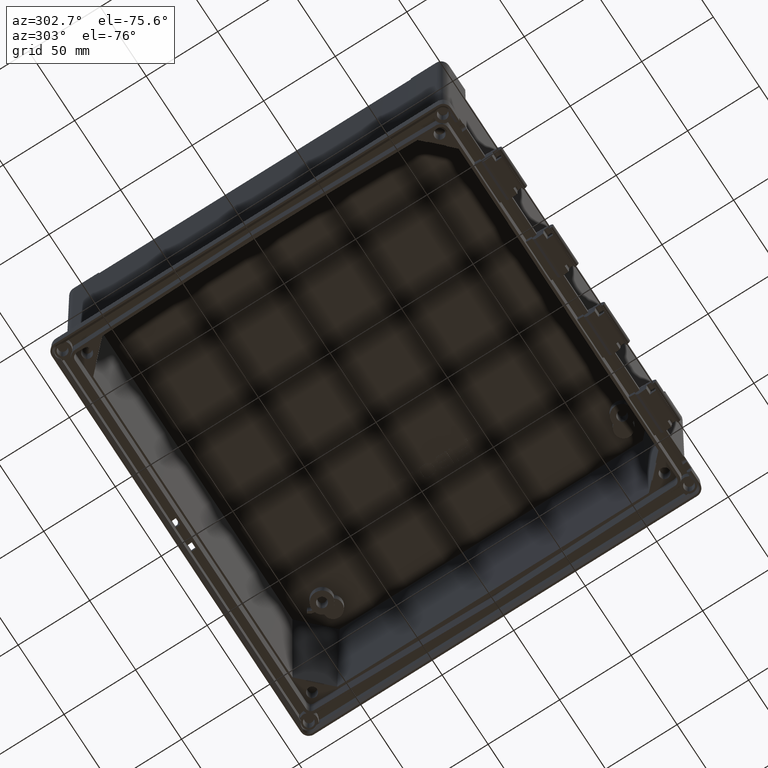
[diagram: clean part render]
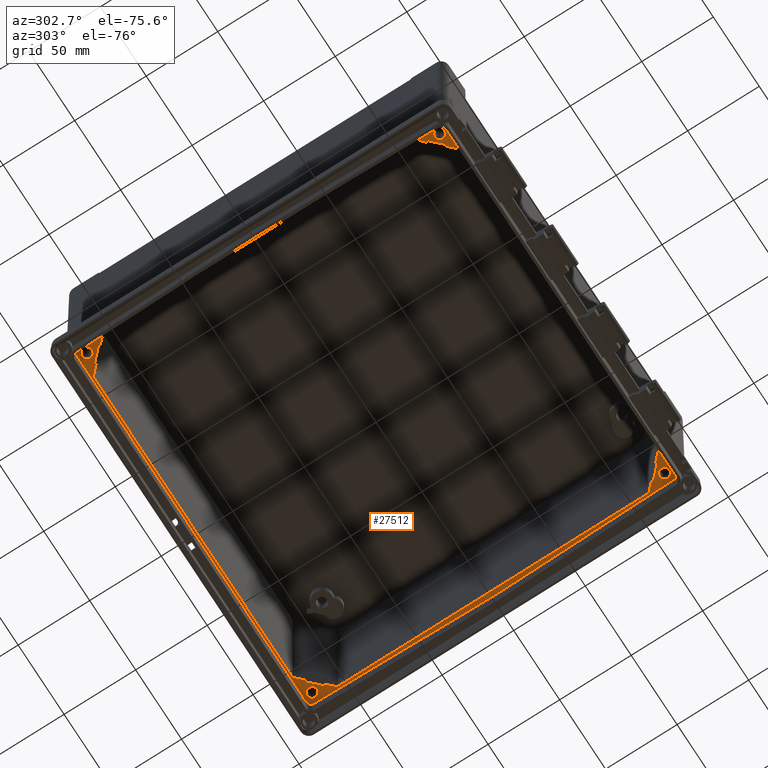
[diagram: same view with one face highlighted and labeled with its STEP entity id]
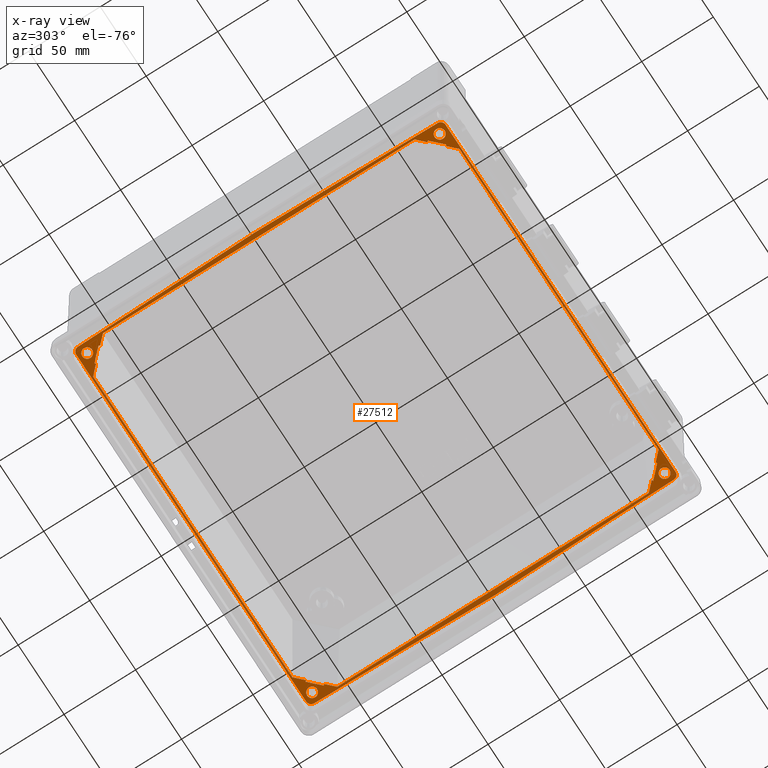
[diagram: x-ray of the same camera — body ghosted, the highlighted face saturated]
A machine part, auxiliary view. The second image highlights one B-rep face of the part: STEP entity #27512.
The next image is the same camera in x-ray: the body ghosted, the highlighted face saturated — about 0% of this face is hidden behind the body in this view.
In plain terms, the highlighted planar face has unit normal (-0, 0, -1).
Its self-contained STEP definition (entity closure, byte-faithful):
#4091 = CARTESIAN_POINT ( 'NONE',  ( 114.8737767247456500, 122.8827916777115900, 15.78999999999999900 ) ) ;
#4092 = DIRECTION ( 'NONE',  ( -0.7071067811865474600, 0.7071067811865474600, 0.0000000000000000000 ) ) ;
#4093 = VECTOR ( 'NONE', #4092, 1000.000000000000100 ) ;
#4094 = CARTESIAN_POINT ( 'NONE',  ( 122.6452168299228300, 115.1113515725344000, 15.78999999999999900 ) ) ;
#4095 = LINE ( 'NONE', #4094, #4093 ) ;
#4101 = DIRECTION ( 'NONE',  ( 0.0000000000000000000, 1.000000000000000000, -0.0000000000000000000 ) ) ;
#4102 = VECTOR ( 'NONE', #4101, 1000.000000000000000 ) ;
#4103 = CARTESIAN_POINT ( 'NONE',  ( 127.4981093756524500, 0.0000000000000000000, 15.78999999999999900 ) ) ;
#4104 = LINE ( 'NONE', #4103, #4102 ) ;
#4106 = CARTESIAN_POINT ( 'NONE',  ( 127.4981093756524500, 108.8807931680683800, 15.78999999999999900 ) ) ;
#4124 = CARTESIAN_POINT ( 'NONE',  ( 121.9566139398984500, 114.4222886038224200, 15.78999999999999900 ) ) ;
#4175 = CARTESIAN_POINT ( 'NONE',  ( 122.6452168299228300, 115.1113515725344000, 15.78999999999999900 ) ) ;
#4230 = CARTESIAN_POINT ( 'NONE',  ( 127.4981093756524500, -108.8807931680683800, 15.78999999999999600 ) ) ;
#4249 = DIRECTION ( 'NONE',  ( -0.7071067811865465700, 0.7071067811865483500, 0.0000000000000000000 ) ) ;
#4250 = VECTOR ( 'NONE', #4249, 1000.000000000000100 ) ;
#4251 = CARTESIAN_POINT ( 'NONE',  ( 127.4981093756524500, 108.8807931680683900, 15.78999999999999900 ) ) ;
#4254 = CARTESIAN_POINT ( 'NONE',  ( -114.8737767247456500, 122.8827916777115900, 15.78999999999999900 ) ) ;
#4256 = LINE ( 'NONE', #4251, #4250 ) ;
#4257 = CARTESIAN_POINT ( 'NONE',  ( -114.1851738347212500, 122.1937287089996000, 15.78999999999999900 ) ) ;
#4313 = DIRECTION ( 'NONE',  ( -0.7068705997775248700, -0.7073428837347289800, 0.0000000000000000000 ) ) ;
#4314 = VECTOR ( 'NONE', #4313, 1000.000000000000000 ) ;
#4315 = CARTESIAN_POINT ( 'NONE',  ( 114.8737767247456500, 122.8827916777115800, 15.78999999999999900 ) ) ;
#4316 = LINE ( 'NONE', #4315, #4314 ) ;
#4318 = CARTESIAN_POINT ( 'NONE',  ( 114.1851738347212500, 122.1937287089996000, 15.78999999999999900 ) ) ;
#4323 = DIRECTION ( 'NONE',  ( -1.000000000000000000, 0.0000000000000000000, 0.0000000000000000000 ) ) ;
#4324 = VECTOR ( 'NONE', #4323, 1000.000000000000000 ) ;
#4325 = CARTESIAN_POINT ( 'NONE',  ( 0.0000000000000000000, 127.9081093756524400, 15.78999999999999900 ) ) ;
#4326 = LINE ( 'NONE', #4325, #4324 ) ;
#4341 = DIRECTION ( 'NONE',  ( 0.7068705997775176500, 0.7073428837347361900, 0.0000000000000000000 ) ) ;
#4342 = VECTOR ( 'NONE', #4341, 1000.000000000000100 ) ;
#4343 = CARTESIAN_POINT ( 'NONE',  ( 121.9566139398984500, 114.4222886038224200, 15.78999999999999900 ) ) ;
#4344 = LINE ( 'NONE', #4343, #4342 ) ;
#4346 = CARTESIAN_POINT ( 'NONE',  ( 108.4707931680684100, 127.9081093756524400, 15.78999999999999600 ) ) ;
#4347 = DIRECTION ( 'NONE',  ( -0.7071067811865466800, 0.7071067811865483500, 0.0000000000000000000 ) ) ;
#4348 = VECTOR ( 'NONE', #4347, 1000.000000000000000 ) ;
#4349 = CARTESIAN_POINT ( 'NONE',  ( 114.1851738347212500, 122.1937287089996000, 15.78999999999999900 ) ) ;
#4354 = LINE ( 'NONE', #4349, #4348 ) ;
#4368 = DIRECTION ( 'NONE',  ( -0.7071067811865466800, -0.7071067811865483500, 0.0000000000000000000 ) ) ;
#4369 = VECTOR ( 'NONE', #4368, 1000.000000000000000 ) ;
#4370 = CARTESIAN_POINT ( 'NONE',  ( -108.4707931680684100, 127.9081093756524400, 15.78999999999999900 ) ) ;
#4371 = LINE ( 'NONE', #4370, #4369 ) ;
#4373 = DIRECTION ( 'NONE',  ( -0.7071067811865465700, -0.7071067811865483500, 0.0000000000000000000 ) ) ;
#4374 = VECTOR ( 'NONE', #4373, 1000.000000000000100 ) ;
#4375 = CARTESIAN_POINT ( 'NONE',  ( -121.9566139398984500, 114.4222886038224200, 15.78999999999999900 ) ) ;
#4376 = LINE ( 'NONE', #4375, #4374 ) ;
#4377 = CARTESIAN_POINT ( 'NONE',  ( -127.4981093756524500, 108.8807931680684200, 15.78999999999999600 ) ) ;
#4399 = DIRECTION ( 'NONE',  ( 0.7068705997775176500, -0.7073428837347361900, 0.0000000000000000000 ) ) ;
#4400 = VECTOR ( 'NONE', #4399, 1000.000000000000100 ) ;
#4401 = CARTESIAN_POINT ( 'NONE',  ( -122.6452168299228300, 115.1113515725344000, 15.78999999999999900 ) ) ;
#4402 = LINE ( 'NONE', #4401, #4400 ) ;
#4404 = CARTESIAN_POINT ( 'NONE',  ( -121.9566139398984500, 114.4222886038224200, 15.78999999999999900 ) ) ;
#4430 = DIRECTION ( 'NONE',  ( -0.7068705997775248700, 0.7073428837347289800, 0.0000000000000000000 ) ) ;
#4431 = VECTOR ( 'NONE', #4430, 1000.000000000000000 ) ;
#4432 = CARTESIAN_POINT ( 'NONE',  ( -114.1851738347212500, 122.1937287089996000, 15.78999999999999900 ) ) ;
#4438 = LINE ( 'NONE', #4432, #4431 ) ;
#4444 = CARTESIAN_POINT ( 'NONE',  ( -122.6452168299228300, 115.1113515725344000, 15.78999999999999900 ) ) ;
#4493 = DIRECTION ( 'NONE',  ( -0.7071067811865474600, -0.7071067811865474600, 0.0000000000000000000 ) ) ;
#4494 = VECTOR ( 'NONE', #4493, 1000.000000000000100 ) ;
#4495 = CARTESIAN_POINT ( 'NONE',  ( -114.8737767247456500, 122.8827916777115800, 15.78999999999999900 ) ) ;
#4496 = LINE ( 'NONE', #4495, #4494 ) ;
#4518 = CARTESIAN_POINT ( 'NONE',  ( -108.4707931680684000, 127.9081093756524400, 15.78999999999999900 ) ) ;
#4541 = DIRECTION ( 'NONE',  ( 0.7068705997775248700, 0.7073428837347289800, 0.0000000000000000000 ) ) ;
#4542 = VECTOR ( 'NONE', #4541, 1000.000000000000000 ) ;
#4543 = CARTESIAN_POINT ( 'NONE',  ( -114.8737767247456500, -122.8827916777115800, 15.78999999999999900 ) ) ;
#4544 = LINE ( 'NONE', #4543, #4542 ) ;
#4546 = CARTESIAN_POINT ( 'NONE',  ( -114.1851738347212500, -122.1937287089996000, 15.78999999999999900 ) ) ;
#4573 = DIRECTION ( 'NONE',  ( -0.7068705997775176500, -0.7073428837347361900, 0.0000000000000000000 ) ) ;
#4574 = VECTOR ( 'NONE', #4573, 1000.000000000000100 ) ;
#4575 = CARTESIAN_POINT ( 'NONE',  ( -121.9566139398984500, -114.4222886038224200, 15.78999999999999900 ) ) ;
#4578 = CARTESIAN_POINT ( 'NONE',  ( -122.6452168299228300, -115.1113515725344000, 15.78999999999999900 ) ) ;
#4580 = LINE ( 'NONE', #4575, #4574 ) ;
#4581 = CARTESIAN_POINT ( 'NONE',  ( -108.4707931680684100, -127.9081093756524400, 15.78999999999999600 ) ) ;
#4593 = CARTESIAN_POINT ( 'NONE',  ( -114.8737767247456500, -122.8827916777115900, 15.78999999999999900 ) ) ;
#4594 = DIRECTION ( 'NONE',  ( 0.7071067811865474600, -0.7071067811865474600, 0.0000000000000000000 ) ) ;
#4595 = VECTOR ( 'NONE', #4594, 1000.000000000000100 ) ;
#4596 = CARTESIAN_POINT ( 'NONE',  ( -122.6452168299228300, -115.1113515725344000, 15.78999999999999900 ) ) ;
#4597 = LINE ( 'NONE', #4596, #4595 ) ;
#4635 = CARTESIAN_POINT ( 'NONE',  ( -127.4981093756524500, -108.8807931680683800, 15.78999999999999900 ) ) ;
#4636 = DIRECTION ( 'NONE',  ( -0.0000000000000000000, -1.000000000000000000, 0.0000000000000000000 ) ) ;
#4637 = VECTOR ( 'NONE', #4636, 1000.000000000000000 ) ;
#4638 = CARTESIAN_POINT ( 'NONE',  ( -127.4981093756524500, 0.0000000000000000000, 15.78999999999999900 ) ) ;
#4639 = LINE ( 'NONE', #4638, #4637 ) ;
#4660 = CARTESIAN_POINT ( 'NONE',  ( -121.9566139398984500, -114.4222886038224200, 15.78999999999999900 ) ) ;
#4668 = CARTESIAN_POINT ( 'NONE',  ( 108.4707931680684000, -127.9081093756524400, 15.78999999999999900 ) ) ;
#4669 = DIRECTION ( 'NONE',  ( 1.000000000000000000, -0.0000000000000000000, -0.0000000000000000000 ) ) ;
#4670 = VECTOR ( 'NONE', #4669, 1000.000000000000000 ) ;
#4671 = CARTESIAN_POINT ( 'NONE',  ( 0.0000000000000000000, -127.9081093756524400, 15.78999999999999900 ) ) ;
#4672 = LINE ( 'NONE', #4671, #4670 ) ;
#4673 = DIRECTION ( 'NONE',  ( 0.7071067811865466800, 0.7071067811865483500, 0.0000000000000000000 ) ) ;
#4674 = VECTOR ( 'NONE', #4673, 1000.000000000000000 ) ;
#4675 = CARTESIAN_POINT ( 'NONE',  ( 108.4707931680684100, -127.9081093756524400, 15.78999999999999900 ) ) ;
#4676 = LINE ( 'NONE', #4675, #4674 ) ;
#4677 = CARTESIAN_POINT ( 'NONE',  ( 114.1851738347212500, -122.1937287089996300, 15.78999999999999900 ) ) ;
#4692 = CARTESIAN_POINT ( 'NONE',  ( 121.9566139398984500, -114.4222886038224200, 15.78999999999999900 ) ) ;
#4693 = DIRECTION ( 'NONE',  ( 0.7071067811865465700, 0.7071067811865483500, 0.0000000000000000000 ) ) ;
#4694 = VECTOR ( 'NONE', #4693, 1000.000000000000100 ) ;
#4695 = CARTESIAN_POINT ( 'NONE',  ( 121.9566139398984500, -114.4222886038224200, 15.78999999999999900 ) ) ;
#4696 = LINE ( 'NONE', #4695, #4694 ) ;
#4700 = DIRECTION ( 'NONE',  ( 0.7071067811865466800, -0.7071067811865483500, 0.0000000000000000000 ) ) ;
#4701 = VECTOR ( 'NONE', #4700, 1000.000000000000000 ) ;
#4702 = CARTESIAN_POINT ( 'NONE',  ( -114.1851738347212500, -122.1937287089996000, 15.78999999999999900 ) ) ;
#4707 = LINE ( 'NONE', #4702, #4701 ) ;
#4749 = DIRECTION ( 'NONE',  ( 0.7071067811865465700, -0.7071067811865483500, 0.0000000000000000000 ) ) ;
#4750 = VECTOR ( 'NONE', #4749, 1000.000000000000100 ) ;
#4751 = CARTESIAN_POINT ( 'NONE',  ( -127.4981093756524500, -108.8807931680683900, 15.78999999999999900 ) ) ;
#4753 = LINE ( 'NONE', #4751, #4750 ) ;
#4780 = B_SPLINE_CURVE_WITH_KNOTS ( 'NONE', 3,
 ( #4821, #4820, #4819, #4818, #4817, #4816, #4815, #4814, #4813, #4812, #4811, #4810, #4809, #4808, #4807, #4806, #4805, #4804, #4803, #4802, #4801, #4800, #4799, #4798, #4797, #4796, #4795, #4794, #4793, #4792, #4791 ),
 .UNSPECIFIED., .F., .F.,
 ( 4, 1, 2, 2, 2, 2, 2, 2, 2, 1, 2, 2, 2, 1, 2, 2, 4 ),
 ( 0.0000000000000000000, 0.06250000000000667500, 0.09375000000001002000, 0.1250000000000133500, 0.1875000000000136000, 0.2500000000000138800, 0.3750000000000063800, 0.4999999999999990000, 0.6249999999999915600, 0.6874999999999887900, 0.7187499999999890100, 0.7499999999999892300, 0.8124999999999924500, 0.8437499999999945600, 0.8593749999999947800, 0.8749999999999950000, 1.000000000000000000 ),
 .UNSPECIFIED. ) ;
#4791 = CARTESIAN_POINT ( 'NONE',  ( 118.8999999999980900, -123.1500000000000100, 15.78999999999948200 ) ) ;
#4792 = CARTESIAN_POINT ( 'NONE',  ( 118.9049070022350300, -122.6728031666890100, 15.78999999999999900 ) ) ;
#4793 = CARTESIAN_POINT ( 'NONE',  ( 118.9936068451573700, -122.2267801378566900, 15.78999999999999600 ) ) ;
#4794 = CARTESIAN_POINT ( 'NONE',  ( 119.1876611142182600, -121.7600747604589900, 15.78999999999999900 ) ) ;
#4795 = CARTESIAN_POINT ( 'NONE',  ( 119.2113684868923400, -121.7066633063313800, 15.78999999999999600 ) ) ;
#4796 = CARTESIAN_POINT ( 'NONE',  ( 119.2603452437933800, -121.6032944630323000, 15.79000000000000300 ) ) ;
#4797 = CARTESIAN_POINT ( 'NONE',  ( 119.3375181779204600, -121.4501399619564400, 15.78999999999999900 ) ) ;
#4798 = CARTESIAN_POINT ( 'NONE',  ( 119.4258145083743400, -121.3026817524987700, 15.78999999999999600 ) ) ;
#4799 = CARTESIAN_POINT ( 'NONE',  ( 119.6172383643847200, -121.0153603890743300, 15.78999999999999900 ) ) ;
#4800 = CARTESIAN_POINT ( 'NONE',  ( 119.7633988306755600, -120.8365413770855700, 15.78999999999999900 ) ) ;
#4801 = CARTESIAN_POINT ( 'NONE',  ( 120.0062729304511300, -120.5936849248901600, 15.78999999999999900 ) ) ;
#4802 = CARTESIAN_POINT ( 'NONE',  ( 120.0923594109237800, -120.5154654566899700, 15.79000000000000300 ) ) ;
#4803 = CARTESIAN_POINT ( 'NONE',  ( 120.2689056930024700, -120.3703750311386600, 15.78999999999999900 ) ) ;
#4804 = CARTESIAN_POINT ( 'NONE',  ( 120.5432268844681400, -120.1668205861924700, 15.79000000000000300 ) ) ;
#4805 = CARTESIAN_POINT ( 'NONE',  ( 120.8460533809765600, -120.0055097213884500, 15.78999999999999900 ) ) ;
#4806 = CARTESIAN_POINT ( 'NONE',  ( 121.4897134473836400, -119.7392127653034100, 15.78999999999999900 ) ) ;
#4807 = CARTESIAN_POINT ( 'NONE',  ( 121.9370324175983200, -119.6499517023017200, 15.78999999999999900 ) ) ;
#4808 = CARTESIAN_POINT ( 'NONE',  ( 122.8629675824016400, -119.6500913377981300, 15.78999999999999600 ) ) ;
#4809 = CARTESIAN_POINT ( 'NONE',  ( 123.3101344301842900, -119.7389989601642200, 15.78999999999999900 ) ) ;
#4810 = CARTESIAN_POINT ( 'NONE',  ( 124.1686520969246500, -120.0944891785560700, 15.79000000000000300 ) ) ;
#4811 = CARTESIAN_POINT ( 'NONE',  ( 124.5475287675117800, -120.3473048816521200, 15.78999999999999900 ) ) ;
#4812 = CARTESIAN_POINT ( 'NONE',  ( 125.0382632704552500, -120.8383031726069600, 15.78999999999999900 ) ) ;
#4813 = CARTESIAN_POINT ( 'NONE',  ( 125.1822785348703800, -121.0145106010379400, 15.78999999999999900 ) ) ;
#4814 = CARTESIAN_POINT ( 'NONE',  ( 125.4384765443739800, -121.3993053283432600, 15.78999999999999600 ) ) ;
#4815 = CARTESIAN_POINT ( 'NONE',  ( 125.5461710809059400, -121.6007596991179700, 15.78999999999999900 ) ) ;
#4816 = CARTESIAN_POINT ( 'NONE',  ( 125.6777651663965100, -121.9175165206958000, 15.79000000000000300 ) ) ;
#4817 = CARTESIAN_POINT ( 'NONE',  ( 125.7149113915831400, -122.0214625087661600, 15.78999999999999600 ) ) ;
#4818 = CARTESIAN_POINT ( 'NONE',  ( 125.7802104552667100, -122.2367712122376800, 15.78999999999999900 ) ) ;
#4819 = CARTESIAN_POINT ( 'NONE',  ( 125.8624471941251800, -122.5655113756534400, 15.78999999999999900 ) ) ;
#4820 = CARTESIAN_POINT ( 'NONE',  ( 125.8975483629834100, -122.9115828636946200, 15.78999999999999900 ) ) ;
#4821 = CARTESIAN_POINT ( 'NONE',  ( 125.9000000000021800, -123.1500000000000100, 15.78999999999948200 ) ) ;
#4850 = DIRECTION ( 'NONE',  ( 0.7071067811865474600, 0.7071067811865474600, 0.0000000000000000000 ) ) ;
#4851 = VECTOR ( 'NONE', #4850, 1000.000000000000100 ) ;
#4852 = CARTESIAN_POINT ( 'NONE',  ( 114.8737767247456500, -122.8827916777115800, 15.78999999999999900 ) ) ;
#4855 = CARTESIAN_POINT ( 'NONE',  ( 122.6452168299228300, -115.1113515725344000, 15.78999999999999900 ) ) ;
#4857 = LINE ( 'NONE', #4852, #4851 ) ;
#4871 = DIRECTION ( 'NONE',  ( -0.7068705997775176500, 0.7073428837347361900, 0.0000000000000000000 ) ) ;
#4872 = VECTOR ( 'NONE', #4871, 1000.000000000000100 ) ;
#4873 = CARTESIAN_POINT ( 'NONE',  ( 122.6452168299228300, -115.1113515725344000, 15.78999999999999900 ) ) ;
#4879 = LINE ( 'NONE', #4873, #4872 ) ;
#4925 = DIRECTION ( 'NONE',  ( 0.7068705997775248700, -0.7073428837347289800, 0.0000000000000000000 ) ) ;
#4926 = VECTOR ( 'NONE', #4925, 1000.000000000000000 ) ;
#4927 = CARTESIAN_POINT ( 'NONE',  ( 114.1851738347212500, -122.1937287089996000, 15.78999999999999900 ) ) ;
#4929 = CARTESIAN_POINT ( 'NONE',  ( 114.8737767247456500, -122.8827916777115900, 15.78999999999999900 ) ) ;
#4931 = LINE ( 'NONE', #4927, #4926 ) ;
#4997 = CARTESIAN_POINT ( 'NONE',  ( -119.2538289190717200, 124.6992403008408800, 15.79000000000000300 ) ) ;
#4998 = CARTESIAN_POINT ( 'NONE',  ( -119.1222348336147400, 124.3824834793248300, 15.78999999999999900 ) ) ;
#4999 = CARTESIAN_POINT ( 'NONE',  ( -119.0850886084167300, 124.2785374912225800, 15.79000000000000300 ) ) ;
#5000 = CARTESIAN_POINT ( 'NONE',  ( -119.0197895447331100, 124.0632287877446300, 15.78999999999999900 ) ) ;
#5001 = CARTESIAN_POINT ( 'NONE',  ( -118.9375528058745500, 123.7344886243240400, 15.78999999999999600 ) ) ;
#5002 = CARTESIAN_POINT ( 'NONE',  ( -118.9024516370163700, 123.3884171362925900, 15.78999999999999900 ) ) ;
#5003 = CARTESIAN_POINT ( 'NONE',  ( -118.8999999999980900, 123.1500000000000100, 15.78999999999948200 ) ) ;
#5015 = B_SPLINE_CURVE_WITH_KNOTS ( 'NONE', 3,
 ( #5003, #5002, #5001, #5000, #4999, #4998, #4997, #5064, #5063, #5062, #5061, #5060, #5059, #5058, #5057, #5056, #5055, #5054, #5053, #5052, #5051, #5050, #5049, #5048, #5047, #5046, #5045, #5044, #5043, #5042, #5041 ),
 .UNSPECIFIED., .F., .F.,
 ( 4, 1, 2, 2, 2, 2, 2, 2, 2, 1, 2, 2, 2, 1, 2, 2, 4 ),
 ( 0.0000000000000000000, 0.06250000000000019400, 0.09374999999999991700, 0.1249999999999996400, 0.1874999999999990800, 0.2499999999999953900, 0.3749999999999880700, 0.4999999999999806800, 0.6249999999999732400, 0.6874999999999726900, 0.7187499999999740200, 0.7499999999999753500, 0.8124999999999753500, 0.8437499999999732400, 0.8593749999999755800, 0.8749999999999779100, 1.000000000000000000 ),
 .UNSPECIFIED. ) ;
#5041 = CARTESIAN_POINT ( 'NONE',  ( -125.9000000000021800, 123.1500000000000100, 15.78999999999948200 ) ) ;
#5042 = CARTESIAN_POINT ( 'NONE',  ( -125.8950929977650500, 123.6271968333025200, 15.78999999999999600 ) ) ;
#5043 = CARTESIAN_POINT ( 'NONE',  ( -125.8063931548426800, 124.0732198621347900, 15.78999999999999900 ) ) ;
#5044 = CARTESIAN_POINT ( 'NONE',  ( -125.6123388857817100, 124.5399252395421300, 15.78999999999999900 ) ) ;
#5045 = CARTESIAN_POINT ( 'NONE',  ( -125.5886315131024000, 124.5933366936830900, 15.78999999999999900 ) ) ;
#5046 = CARTESIAN_POINT ( 'NONE',  ( -125.5396547561983900, 124.6967055369903600, 15.78999999999999200 ) ) ;
#5047 = CARTESIAN_POINT ( 'NONE',  ( -125.4624818220691500, 124.8498600380724100, 15.78999999999999900 ) ) ;
#5048 = CARTESIAN_POINT ( 'NONE',  ( -125.3741854916196300, 124.9973182475177500, 15.78999999999999600 ) ) ;
#5049 = CARTESIAN_POINT ( 'NONE',  ( -125.1827616356271900, 125.2846396108927300, 15.78999999999999900 ) ) ;
#5050 = CARTESIAN_POINT ( 'NONE',  ( -125.0366011693122300, 125.4634586229175900, 15.79000000000000300 ) ) ;
#5051 = CARTESIAN_POINT ( 'NONE',  ( -124.7937270695549500, 125.7063150751082900, 15.79000000000000300 ) ) ;
#5052 = CARTESIAN_POINT ( 'NONE',  ( -124.7076405890750800, 125.7845345433191700, 15.78999999999999600 ) ) ;
#5053 = CARTESIAN_POINT ( 'NONE',  ( -124.5310943069956700, 125.9296249688756600, 15.78999999999999600 ) ) ;
#5054 = CARTESIAN_POINT ( 'NONE',  ( -124.2567731155295300, 126.1331794138257300, 15.78999999999999600 ) ) ;
#5055 = CARTESIAN_POINT ( 'NONE',  ( -123.9539466190221600, 126.2944902786219400, 15.78999999999999900 ) ) ;
#5056 = CARTESIAN_POINT ( 'NONE',  ( -123.3102865526190200, 126.5607872346757900, 15.78999999999999900 ) ) ;
#5057 = CARTESIAN_POINT ( 'NONE',  ( -122.8629675823686100, 126.6500482976922500, 15.79000000000000300 ) ) ;
#5058 = CARTESIAN_POINT ( 'NONE',  ( -121.9370324176314000, 126.6499086622079100, 15.78999999999999600 ) ) ;
#5059 = CARTESIAN_POINT ( 'NONE',  ( -121.4898655698304100, 126.5610010398419100, 15.78999999999999900 ) ) ;
#5060 = CARTESIAN_POINT ( 'NONE',  ( -120.6313479030606900, 126.2055108214378500, 15.78999999999999900 ) ) ;
#5061 = CARTESIAN_POINT ( 'NONE',  ( -120.2524712324778600, 125.9526951183435800, 15.78999999999999900 ) ) ;
#5062 = CARTESIAN_POINT ( 'NONE',  ( -119.7617367295499500, 125.4616968273951900, 15.78999999999999600 ) ) ;
#5063 = CARTESIAN_POINT ( 'NONE',  ( -119.6177214651085300, 125.2854893989379400, 15.78999999999999600 ) ) ;
#5064 = CARTESIAN_POINT ( 'NONE',  ( -119.3615234556471200, 124.9006946716808800, 15.79000000000000300 ) ) ;
#5103 = CARTESIAN_POINT ( 'NONE',  ( -119.0197895447330600, -122.2367712122679100, 15.79000000000000300 ) ) ;
#5104 = CARTESIAN_POINT ( 'NONE',  ( -118.9375528058744600, -122.5655113756918300, 15.79000000000000300 ) ) ;
#5105 = CARTESIAN_POINT ( 'NONE',  ( -118.9024516370163100, -122.9115828637165000, 15.78999999999999600 ) ) ;
#5106 = CARTESIAN_POINT ( 'NONE',  ( -118.8999999999980900, -123.1500000000000200, 15.78999999999948200 ) ) ;
#5108 = B_SPLINE_CURVE_WITH_KNOTS ( 'NONE', 3,
 ( #5106, #5105, #5104, #5103, #5160, #5159, #5158, #5157, #5156, #5155, #5154, #5153, #5152, #5151, #5150, #5149, #5148, #5147, #5146, #5145, #5144, #5143, #5142, #5141, #5140, #5139, #5138, #5137, #5136, #5135, #5134 ),
 .UNSPECIFIED., .F., .F.,
 ( 4, 1, 2, 2, 2, 2, 2, 2, 2, 1, 2, 2, 2, 1, 2, 2, 4 ),
 ( 0.0000000000000000000, 0.06250000000000512100, 0.09375000000000542600, 0.1250000000000057500, 0.1875000000000063600, 0.2500000000000069900, 0.3750000000000082700, 0.5000000000000095500, 0.6250000000000107700, 0.6875000000000103300, 0.7187500000000095500, 0.7500000000000087700, 0.8125000000000074400, 0.8437500000000067700, 0.8593750000000062200, 0.8750000000000057700, 1.000000000000000000 ),
 .UNSPECIFIED. ) ;
#5134 = CARTESIAN_POINT ( 'NONE',  ( -125.9000000000021800, -123.1500000000000100, 15.78999999999948200 ) ) ;
#5135 = CARTESIAN_POINT ( 'NONE',  ( -125.8950929977651300, -122.6728031667036000, 15.78999999999999900 ) ) ;
#5136 = CARTESIAN_POINT ( 'NONE',  ( -125.8063931548428200, -122.2267801378713200, 15.78999999999999900 ) ) ;
#5137 = CARTESIAN_POINT ( 'NONE',  ( -125.6123388857817100, -121.7600747604571400, 15.78999999999999900 ) ) ;
#5138 = CARTESIAN_POINT ( 'NONE',  ( -125.5886315131111400, -121.7066633063366400, 15.78999999999999600 ) ) ;
#5139 = CARTESIAN_POINT ( 'NONE',  ( -125.5396547562121700, -121.6032944630406100, 15.79000000000000300 ) ) ;
#5140 = CARTESIAN_POINT ( 'NONE',  ( -125.4624818220865700, -121.4501399619669500, 15.78999999999999600 ) ) ;
#5141 = CARTESIAN_POINT ( 'NONE',  ( -125.3741854916296700, -121.3026817525048100, 15.78999999999999900 ) ) ;
#5142 = CARTESIAN_POINT ( 'NONE',  ( -125.1827616356072100, -121.0153603890622500, 15.78999999999999900 ) ) ;
#5143 = CARTESIAN_POINT ( 'NONE',  ( -125.0366011693424800, -120.8365413771126500, 15.79000000000000300 ) ) ;
#5144 = CARTESIAN_POINT ( 'NONE',  ( -124.7937270695399100, -120.5936849248767300, 15.79000000000000300 ) ) ;
#5145 = CARTESIAN_POINT ( 'NONE',  ( -124.7076405890898600, -120.5154654566955900, 15.78999999999999900 ) ) ;
#5146 = CARTESIAN_POINT ( 'NONE',  ( -124.5310943070189000, -120.3703750311475500, 15.79000000000000300 ) ) ;
#5147 = CARTESIAN_POINT ( 'NONE',  ( -124.2567731155590600, -120.1668205862037100, 15.78999999999999900 ) ) ;
#5148 = CARTESIAN_POINT ( 'NONE',  ( -123.9539466190389600, -120.0055097213949400, 15.78999999999999600 ) ) ;
#5149 = CARTESIAN_POINT ( 'NONE',  ( -123.3102865525853000, -119.7392127652905500, 15.78999999999999900 ) ) ;
#5150 = CARTESIAN_POINT ( 'NONE',  ( -122.8629675824016400, -119.6499517023017300, 15.79000000000000300 ) ) ;
#5151 = CARTESIAN_POINT ( 'NONE',  ( -121.9370324175983000, -119.6500913377981300, 15.78999999999999600 ) ) ;
#5152 = CARTESIAN_POINT ( 'NONE',  ( -121.4898655697898400, -119.7389989601642400, 15.78999999999999600 ) ) ;
#5153 = CARTESIAN_POINT ( 'NONE',  ( -120.6313479031013000, -120.0944891785560000, 15.78999999999999900 ) ) ;
#5154 = CARTESIAN_POINT ( 'NONE',  ( -120.2524712324699000, -120.3473048816704100, 15.78999999999999900 ) ) ;
#5155 = CARTESIAN_POINT ( 'NONE',  ( -119.7617367295539000, -120.8383031725977200, 15.78999999999999600 ) ) ;
#5156 = CARTESIAN_POINT ( 'NONE',  ( -119.6177214651417000, -121.0145106010257800, 15.78999999999999600 ) ) ;
#5157 = CARTESIAN_POINT ( 'NONE',  ( -119.3615234556139100, -121.3993053283554400, 15.79000000000000300 ) ) ;
#5158 = CARTESIAN_POINT ( 'NONE',  ( -119.2538289190766700, -121.6007596991381100, 15.78999999999999900 ) ) ;
#5159 = CARTESIAN_POINT ( 'NONE',  ( -119.1222348336122400, -121.9175165206857100, 15.78999999999999600 ) ) ;
#5160 = CARTESIAN_POINT ( 'NONE',  ( -119.0850886084166300, -122.0214625087854000, 15.78999999999999900 ) ) ;
#5164 = CARTESIAN_POINT ( 'NONE',  ( 124.1686520968804200, 126.2055108214379700, 15.78999999999999900 ) ) ;
#5165 = CARTESIAN_POINT ( 'NONE',  ( 124.5475287675429700, 125.9526951183106100, 15.79000000000000300 ) ) ;
#5166 = CARTESIAN_POINT ( 'NONE',  ( 125.0382632704396000, 125.4616968274117900, 15.79000000000000300 ) ) ;
#5167 = CARTESIAN_POINT ( 'NONE',  ( 125.1822785348402400, 125.2854893989953100, 15.79000000000000300 ) ) ;
#5168 = CARTESIAN_POINT ( 'NONE',  ( 125.4384765444041000, 124.9006946716236000, 15.78999999999999900 ) ) ;
#5169 = CARTESIAN_POINT ( 'NONE',  ( 125.5461710809280500, 124.6992403008608800, 15.78999999999999900 ) ) ;
#5170 = CARTESIAN_POINT ( 'NONE',  ( 125.6777651663853700, 124.3824834793148700, 15.78999999999999900 ) ) ;
#5171 = CARTESIAN_POINT ( 'NONE',  ( 125.7149113915834400, 124.2785374912056000, 15.78999999999999900 ) ) ;
#5172 = CARTESIAN_POINT ( 'NONE',  ( 125.7802104552671700, 124.0632287877179600, 15.79000000000000300 ) ) ;
#5173 = CARTESIAN_POINT ( 'NONE',  ( 125.8624471941257600, 123.7344886242900800, 15.79000000000000300 ) ) ;
#5174 = CARTESIAN_POINT ( 'NONE',  ( 125.8975483629837600, 123.3884171362731300, 15.78999999999999600 ) ) ;
#5175 = CARTESIAN_POINT ( 'NONE',  ( 125.9000000000021800, 123.1500000000000100, 15.78999999999948200 ) ) ;
#5187 = B_SPLINE_CURVE_WITH_KNOTS ( 'NONE', 3,
 ( #5175, #5174, #5173, #5172, #5171, #5170, #5169, #5168, #5167, #5166, #5165, #5164, #5227, #5226, #5225, #5224, #5223, #5222, #5221, #5220, #5219, #5218, #5217, #5216, #5215, #5214, #5213, #5212, #5211, #5210, #5209 ),
 .UNSPECIFIED., .F., .F.,
 ( 4, 1, 2, 2, 2, 2, 2, 2, 2, 1, 2, 2, 2, 1, 2, 2, 4 ),
 ( 0.0000000000000000000, 0.06249999999999783500, 0.09374999999999675300, 0.1249999999999956700, 0.1874999999999935100, 0.2499999999999944500, 0.3749999999999963400, 0.4999999999999982200, 0.6250000000000001100, 0.6875000000000042200, 0.7187500000000047700, 0.7500000000000052200, 0.8125000000000061100, 0.8437500000000087700, 0.8593750000000092100, 0.8750000000000096600, 1.000000000000000000 ),
 .UNSPECIFIED. ) ;
#5209 = CARTESIAN_POINT ( 'NONE',  ( 118.8999999999980900, 123.1500000000000200, 15.78999999999948200 ) ) ;
#5210 = CARTESIAN_POINT ( 'NONE',  ( 118.9049070022346500, 123.6271968332756800, 15.78999999999999900 ) ) ;
#5211 = CARTESIAN_POINT ( 'NONE',  ( 118.9936068451569800, 124.0732198621078900, 15.78999999999999600 ) ) ;
#5212 = CARTESIAN_POINT ( 'NONE',  ( 119.1876611142183400, 124.5399252395455000, 15.79000000000000300 ) ) ;
#5213 = CARTESIAN_POINT ( 'NONE',  ( 119.2113684868860700, 124.5933366936611400, 15.79000000000000300 ) ) ;
#5214 = CARTESIAN_POINT ( 'NONE',  ( 119.2603452437834600, 124.6967055369559200, 15.78999999999999900 ) ) ;
#5215 = CARTESIAN_POINT ( 'NONE',  ( 119.3375181779077800, 124.8498600380285900, 15.79000000000000300 ) ) ;
#5216 = CARTESIAN_POINT ( 'NONE',  ( 119.4258145083671400, 124.9973182474927000, 15.79000000000000300 ) ) ;
#5217 = CARTESIAN_POINT ( 'NONE',  ( 119.6172383643991700, 125.2846396109428300, 15.78999999999999900 ) ) ;
#5218 = CARTESIAN_POINT ( 'NONE',  ( 119.7633988306785400, 125.4634586229144200, 15.78999999999999900 ) ) ;
#5219 = CARTESIAN_POINT ( 'NONE',  ( 120.0062729304496000, 125.7063150751098100, 15.78999999999999900 ) ) ;
#5220 = CARTESIAN_POINT ( 'NONE',  ( 120.0923594109210900, 125.7845345433100700, 15.78999999999999600 ) ) ;
#5221 = CARTESIAN_POINT ( 'NONE',  ( 120.2689056929983300, 125.9296249688613800, 15.78999999999999900 ) ) ;
#5222 = CARTESIAN_POINT ( 'NONE',  ( 120.5432268844628700, 126.1331794138075500, 15.79000000000000300 ) ) ;
#5223 = CARTESIAN_POINT ( 'NONE',  ( 120.8460533809735700, 126.2944902786115600, 15.79000000000000300 ) ) ;
#5224 = CARTESIAN_POINT ( 'NONE',  ( 121.4897134473896900, 126.5607872346966000, 15.78999999999999900 ) ) ;
#5225 = CARTESIAN_POINT ( 'NONE',  ( 121.9370324175898300, 126.6500482976922800, 15.78999999999999900 ) ) ;
#5226 = CARTESIAN_POINT ( 'NONE',  ( 122.8629675824101600, 126.6499086622079300, 15.78999999999999900 ) ) ;
#5227 = CARTESIAN_POINT ( 'NONE',  ( 123.3101344302284600, 126.5610010398418600, 15.78999999999999900 ) ) ;
#5230 = VECTOR ( 'NONE', #5669, 1000.000000000000100 ) ;
#5231 = CARTESIAN_POINT ( 'NONE',  ( 128.5900492042191600, 125.7613499632062300, 15.79000000000000300 ) ) ;
#5232 = LINE ( 'NONE', #5231, #5230 ) ;
#5233 = VECTOR ( 'NONE', #5235, 1000.000000000000000 ) ;
#5235 = DIRECTION ( 'NONE',  ( -1.000000000000000000, 0.0000000000000000000, -0.0000000000000000000 ) ) ;
#5236 = CARTESIAN_POINT ( 'NONE',  ( -133.7072992288786700, 129.0952376915247200, 15.78999999999999600 ) ) ;
#5315 = CARTESIAN_POINT ( 'NONE',  ( 128.5900492042191300, -125.7613499632062300, 15.78999999999999900 ) ) ;
#5332 = CARTESIAN_POINT ( 'NONE',  ( 125.1974604045431900, -129.0952376915247400, 15.78999999999999900 ) ) ;
#5373 = CARTESIAN_POINT ( 'NONE',  ( 125.1974604045431900, -129.0952376915247400, 15.78999999999999900 ) ) ;
#5374 = CARTESIAN_POINT ( 'NONE',  ( 125.6446542181674200, -129.0943009434532800, 15.78999999999999900 ) ) ;
#5375 = CARTESIAN_POINT ( 'NONE',  ( 126.0729542624062300, -129.0101396456796900, 15.78999999999999600 ) ) ;
#5376 = CARTESIAN_POINT ( 'NONE',  ( 126.6870636746865400, -128.7590608744659400, 15.78999999999999900 ) ) ;
#5377 = CARTESIAN_POINT ( 'NONE',  ( 126.8824574397120700, -128.6564136132665800, 15.79000000000000300 ) ) ;
#5378 = CARTESIAN_POINT ( 'NONE',  ( 127.2469877765713700, -128.4163333972854300, 15.78999999999999900 ) ) ;
#5379 = CARTESIAN_POINT ( 'NONE',  ( 127.4173974231366800, -128.2783799456135200, 15.78999999999999900 ) ) ;
#5380 = CARTESIAN_POINT ( 'NONE',  ( 127.8930597972395900, -127.8107795595539200, 15.78999999999999600 ) ) ;
#5381 = CARTESIAN_POINT ( 'NONE',  ( 128.1400743685932500, -127.4499022394617900, 15.78999999999999600 ) ) ;
#5382 = CARTESIAN_POINT ( 'NONE',  ( 128.4902923933756800, -126.6334224832981500, 15.78999999999999900 ) ) ;
#5383 = CARTESIAN_POINT ( 'NONE',  ( 128.5812396834045000, -126.2082245296352600, 15.78999999999999600 ) ) ;
#5384 = CARTESIAN_POINT ( 'NONE',  ( 128.5900492042191300, -125.7613499632062300, 15.78999999999999900 ) ) ;
#5387 = B_SPLINE_CURVE_WITH_KNOTS ( 'NONE', 3,
 ( #5384, #5383, #5382, #5381, #5380, #5379, #5378, #5377, #5376, #5375, #5374, #5373 ),
 .UNSPECIFIED., .F., .F.,
 ( 4, 2, 2, 2, 2, 4 ),
 ( 0.0000000000000000000, 0.2499999999999995600, 0.4999999999999991100, 0.6250000000000044400, 0.7500000000000097700, 1.000000000000000000 ),
 .UNSPECIFIED. ) ;
#5393 = CARTESIAN_POINT ( 'NONE',  ( -126.0710282679371500, -129.0107722610311200, 15.78999999999999900 ) ) ;
#5394 = CARTESIAN_POINT ( 'NONE',  ( -125.6442750082951400, -129.0943017377937000, 15.79000000000000300 ) ) ;
#5395 = CARTESIAN_POINT ( 'NONE',  ( -125.1974604045432200, -129.0952376915247400, 15.78999999999999900 ) ) ;
#5426 = CARTESIAN_POINT ( 'NONE',  ( -125.1974604045432200, -129.0952376915247400, 15.78999999999999900 ) ) ;
#5427 = B_SPLINE_CURVE_WITH_KNOTS ( 'NONE', 3,
 ( #5395, #5394, #5393, #5447, #5446, #5445, #5444, #5443, #5442, #5441, #5440, #5439 ),
 .UNSPECIFIED., .F., .F.,
 ( 4, 2, 2, 2, 2, 4 ),
 ( 0.0000000000000000000, 0.2499999999999965600, 0.4999999999999931200, 0.6249999999999968900, 0.7500000000000007800, 1.000000000000000000 ),
 .UNSPECIFIED. ) ;
#5428 = CARTESIAN_POINT ( 'NONE',  ( -128.5900492042191300, -125.7613499632062300, 15.78999999999999900 ) ) ;
#5439 = CARTESIAN_POINT ( 'NONE',  ( -128.5900492042191300, -125.7613499632062300, 15.78999999999999900 ) ) ;
#5440 = CARTESIAN_POINT ( 'NONE',  ( -128.5812321968161000, -126.2086042967050500, 15.78999999999999600 ) ) ;
#5441 = CARTESIAN_POINT ( 'NONE',  ( -128.4896102557379400, -126.6353750960963000, 15.78999999999999900 ) ) ;
#5442 = CARTESIAN_POINT ( 'NONE',  ( -128.2279699436077500, -127.2448059940218300, 15.78999999999999900 ) ) ;
#5443 = CARTESIAN_POINT ( 'NONE',  ( -128.1219343545520000, -127.4383731931964800, 15.78999999999999900 ) ) ;
#5444 = CARTESIAN_POINT ( 'NONE',  ( -127.8755237435030000, -127.7986567894898700, 15.78999999999999600 ) ) ;
#5445 = CARTESIAN_POINT ( 'NONE',  ( -127.7345979097731300, -127.9666561757955800, 15.78999999999999600 ) ) ;
#5446 = CARTESIAN_POINT ( 'NONE',  ( -127.2586588239667000, -128.4342270991896800, 15.78999999999999600 ) ) ;
#5447 = CARTESIAN_POINT ( 'NONE',  ( -126.8936928065823900, -128.6747353353765100, 15.78999999999999600 ) ) ;
#5541 = CARTESIAN_POINT ( 'NONE',  ( -125.1974604045431900, 129.0952376915247400, 15.78999999999999900 ) ) ;
#5548 = CARTESIAN_POINT ( 'NONE',  ( -128.5900492042191300, 125.7613499632062300, 15.78999999999999900 ) ) ;
#5570 = CARTESIAN_POINT ( 'NONE',  ( -125.1974604045431900, 129.0952376915247400, 15.78999999999999900 ) ) ;
#5571 = CARTESIAN_POINT ( 'NONE',  ( -125.6446542181674200, 129.0943009434532800, 15.78999999999999900 ) ) ;
#5572 = CARTESIAN_POINT ( 'NONE',  ( -126.0729542624062300, 129.0101396456796900, 15.78999999999999600 ) ) ;
#5573 = CARTESIAN_POINT ( 'NONE',  ( -126.6870636746865400, 128.7590608744659400, 15.78999999999999900 ) ) ;
#5574 = CARTESIAN_POINT ( 'NONE',  ( -126.8824574397120700, 128.6564136132665800, 15.79000000000000300 ) ) ;
#5575 = CARTESIAN_POINT ( 'NONE',  ( -127.2469877765713700, 128.4163333972854300, 15.78999999999999900 ) ) ;
#5576 = CARTESIAN_POINT ( 'NONE',  ( -127.4173974231366800, 128.2783799456135200, 15.78999999999999900 ) ) ;
#5577 = CARTESIAN_POINT ( 'NONE',  ( -127.8930597972395900, 127.8107795595539200, 15.78999999999999600 ) ) ;
#5578 = CARTESIAN_POINT ( 'NONE',  ( -128.1400743685932500, 127.4499022394617900, 15.78999999999999600 ) ) ;
#5579 = CARTESIAN_POINT ( 'NONE',  ( -128.4902923933756800, 126.6334224832981500, 15.78999999999999900 ) ) ;
#5580 = CARTESIAN_POINT ( 'NONE',  ( -128.5812396834045000, 126.2082245296352600, 15.78999999999999600 ) ) ;
#5581 = CARTESIAN_POINT ( 'NONE',  ( -128.5900492042191300, 125.7613499632062300, 15.78999999999999900 ) ) ;
#5586 = FACE_OUTER_BOUND ( 'NONE', #27544, .T. ) ;
#5587 = FACE_BOUND ( 'NONE', #27497, .T. ) ;
#5588 = FACE_BOUND ( 'NONE', #27494, .T. ) ;
#5589 = FACE_BOUND ( 'NONE', #27513, .T. ) ;
#5590 = B_SPLINE_CURVE_WITH_KNOTS ( 'NONE', 3,
 ( #5581, #5580, #5579, #5578, #5577, #5576, #5575, #5574, #5573, #5572, #5571, #5570 ),
 .UNSPECIFIED., .F., .F.,
 ( 4, 2, 2, 2, 2, 4 ),
 ( 0.0000000000000000000, 0.2499999999999995600, 0.4999999999999991100, 0.6250000000000044400, 0.7500000000000097700, 1.000000000000000000 ),
 .UNSPECIFIED. ) ;
#5591 = FACE_BOUND ( 'NONE', #27491, .T. ) ;
#5592 = FACE_BOUND ( 'NONE', #27488, .T. ) ;
#5607 = DIRECTION ( 'NONE',  ( -1.000000000000000000, 0.0000000000000000000, 0.0000000000000000000 ) ) ;
#5608 = DIRECTION ( 'NONE',  ( -0.0000000000000000000, 0.0000000000000000000, -1.000000000000000000 ) ) ;
#5609 = CARTESIAN_POINT ( 'NONE',  ( 0.0000000000000000000, 0.0000000000000000000, 15.78999999999999900 ) ) ;
#5610 = AXIS2_PLACEMENT_3D ( 'NONE', #5609, #5608, #5607 ) ;
#5613 = PLANE ( 'NONE',  #5610 ) ;
#5622 = B_SPLINE_CURVE_WITH_KNOTS ( 'NONE', 3,
 ( #5627, #5626, #5625, #5641, #5640, #5639, #5638, #5637, #5636, #5635, #5634, #5633 ),
 .UNSPECIFIED., .F., .F.,
 ( 4, 2, 2, 2, 2, 4 ),
 ( 0.0000000000000000000, 0.2499999999999965600, 0.4999999999999931200, 0.6249999999999968900, 0.7500000000000007800, 1.000000000000000000 ),
 .UNSPECIFIED. ) ;
#5623 = CARTESIAN_POINT ( 'NONE',  ( 125.1974604045432200, 129.0952376915247400, 15.78999999999999900 ) ) ;
#5624 = CARTESIAN_POINT ( 'NONE',  ( 128.5900492042191300, 125.7613499632062300, 15.78999999999999900 ) ) ;
#5625 = CARTESIAN_POINT ( 'NONE',  ( 126.0710282679371500, 129.0107722610311200, 15.78999999999999900 ) ) ;
#5626 = CARTESIAN_POINT ( 'NONE',  ( 125.6442750082951400, 129.0943017377937000, 15.79000000000000300 ) ) ;
#5627 = CARTESIAN_POINT ( 'NONE',  ( 125.1974604045432200, 129.0952376915247400, 15.78999999999999900 ) ) ;
#5633 = CARTESIAN_POINT ( 'NONE',  ( 128.5900492042191300, 125.7613499632062300, 15.78999999999999900 ) ) ;
#5634 = CARTESIAN_POINT ( 'NONE',  ( 128.5812321968161000, 126.2086042967050500, 15.78999999999999600 ) ) ;
#5635 = CARTESIAN_POINT ( 'NONE',  ( 128.4896102557379400, 126.6353750960963000, 15.78999999999999900 ) ) ;
#5636 = CARTESIAN_POINT ( 'NONE',  ( 128.2279699436077500, 127.2448059940218300, 15.78999999999999900 ) ) ;
#5637 = CARTESIAN_POINT ( 'NONE',  ( 128.1219343545520000, 127.4383731931964800, 15.78999999999999900 ) ) ;
#5638 = CARTESIAN_POINT ( 'NONE',  ( 127.8755237435030000, 127.7986567894898700, 15.78999999999999600 ) ) ;
#5639 = CARTESIAN_POINT ( 'NONE',  ( 127.7345979097731300, 127.9666561757955800, 15.78999999999999600 ) ) ;
#5640 = CARTESIAN_POINT ( 'NONE',  ( 127.2586588239667000, 128.4342270991896800, 15.78999999999999600 ) ) ;
#5641 = CARTESIAN_POINT ( 'NONE',  ( 126.8936928065823900, 128.6747353353765100, 15.78999999999999600 ) ) ;
#5668 = LINE ( 'NONE', #5236, #5233 ) ;
#5669 = DIRECTION ( 'NONE',  ( 0.01745240643728331700, -0.9998476951563911600, -2.758334368542547200E-017 ) ) ;
#5670 = DIRECTION ( 'NONE',  ( -0.01745240643728331700, -0.9998476951563911600, -2.758334368542547200E-017 ) ) ;
#5671 = VECTOR ( 'NONE', #5670, 1000.000000000000100 ) ;
#5672 = CARTESIAN_POINT ( 'NONE',  ( -128.5900492042191600, 125.7613499632062300, 15.79000000000000300 ) ) ;
#5673 = LINE ( 'NONE', #5672, #5671 ) ;
#5697 = LINE ( 'NONE', #5749, #5748 ) ;
#5718 = DIRECTION ( 'NONE',  ( 0.01745240643728331700, 0.9998476951563911600, -2.758334368542547200E-017 ) ) ;
#5719 = VECTOR ( 'NONE', #5718, 1000.000000000000100 ) ;
#5720 = CARTESIAN_POINT ( 'NONE',  ( 128.5900492042191600, -125.7613499632062300, 15.79000000000000300 ) ) ;
#5721 = LINE ( 'NONE', #5720, #5719 ) ;
#5723 = CARTESIAN_POINT ( 'NONE',  ( 130.7852217332871900, -1.236668102991278500E-016, 15.78999999999999900 ) ) ;
#5742 = CARTESIAN_POINT ( 'NONE',  ( -130.7852217332872200, 1.611056665677679200E-015, 15.78999999999999900 ) ) ;
#5743 = DIRECTION ( 'NONE',  ( -0.01745240643728331700, 0.9998476951563911600, -2.758334368542547200E-017 ) ) ;
#5744 = VECTOR ( 'NONE', #5743, 1000.000000000000100 ) ;
#5745 = CARTESIAN_POINT ( 'NONE',  ( -128.5900492042191600, -125.7613499632062300, 15.79000000000000300 ) ) ;
#5746 = LINE ( 'NONE', #5745, #5744 ) ;
#5747 = DIRECTION ( 'NONE',  ( 1.000000000000000000, -0.0000000000000000000, 0.0000000000000000000 ) ) ;
#5748 = VECTOR ( 'NONE', #5747, 1000.000000000000000 ) ;
#5749 = CARTESIAN_POINT ( 'NONE',  ( 133.7072992288786700, -129.0952376915247200, 15.78999999999999900 ) ) ;
#21445 = CARTESIAN_POINT ( 'NONE',  ( 122.8629675823686100, -126.6500482976922500, 15.79000000000000300 ) ) ;
#21446 = CARTESIAN_POINT ( 'NONE',  ( 121.9370324176314000, -126.6499086622079100, 15.78999999999999600 ) ) ;
#21447 = CARTESIAN_POINT ( 'NONE',  ( 121.4898655698304100, -126.5610010398419100, 15.78999999999999900 ) ) ;
#21448 = CARTESIAN_POINT ( 'NONE',  ( 120.6313479030606900, -126.2055108214378500, 15.78999999999999900 ) ) ;
#21449 = CARTESIAN_POINT ( 'NONE',  ( 120.2524712324778600, -125.9526951183435800, 15.78999999999999900 ) ) ;
#21450 = CARTESIAN_POINT ( 'NONE',  ( 119.7617367295499500, -125.4616968273951900, 15.78999999999999600 ) ) ;
#21451 = CARTESIAN_POINT ( 'NONE',  ( 119.6177214651085300, -125.2854893989379400, 15.78999999999999600 ) ) ;
#21452 = CARTESIAN_POINT ( 'NONE',  ( 119.3615234556471200, -124.9006946716808800, 15.79000000000000300 ) ) ;
#21453 = CARTESIAN_POINT ( 'NONE',  ( 119.2538289190717200, -124.6992403008408800, 15.79000000000000300 ) ) ;
#21454 = CARTESIAN_POINT ( 'NONE',  ( 119.1222348336147400, -124.3824834793248300, 15.78999999999999900 ) ) ;
#21455 = CARTESIAN_POINT ( 'NONE',  ( 119.0850886084167300, -124.2785374912225800, 15.79000000000000300 ) ) ;
#21456 = CARTESIAN_POINT ( 'NONE',  ( 119.0197895447331100, -124.0632287877446300, 15.78999999999999900 ) ) ;
#21457 = CARTESIAN_POINT ( 'NONE',  ( 118.9375528058745500, -123.7344886243240400, 15.78999999999999600 ) ) ;
#21458 = CARTESIAN_POINT ( 'NONE',  ( 118.9024516370163700, -123.3884171362925900, 15.78999999999999900 ) ) ;
#21459 = CARTESIAN_POINT ( 'NONE',  ( 118.8999999999980900, -123.1500000000000100, 15.78999999999948200 ) ) ;
#21479 = B_SPLINE_CURVE_WITH_KNOTS ( 'NONE', 3,
 ( #21459, #21458, #21457, #21456, #21455, #21454, #21453, #21452, #21451, #21450, #21449, #21448, #21447, #21446, #21445, #21512, #21511, #21510, #21509, #21508, #21507, #21506, #21505, #21504, #21503, #21502, #21501, #21500, #21499, #21498, #21497 ),
 .UNSPECIFIED., .F., .F.,
 ( 4, 1, 2, 2, 2, 2, 2, 2, 2, 1, 2, 2, 2, 1, 2, 2, 4 ),
 ( 0.0000000000000000000, 0.06250000000000019400, 0.09374999999999991700, 0.1249999999999996400, 0.1874999999999990800, 0.2499999999999953900, 0.3749999999999880700, 0.4999999999999806800, 0.6249999999999732400, 0.6874999999999726900, 0.7187499999999740200, 0.7499999999999753500, 0.8124999999999753500, 0.8437499999999732400, 0.8593749999999755800, 0.8749999999999779100, 1.000000000000000000 ),
 .UNSPECIFIED. ) ;
#21497 = CARTESIAN_POINT ( 'NONE',  ( 125.9000000000021800, -123.1500000000000100, 15.78999999999948200 ) ) ;
#21498 = CARTESIAN_POINT ( 'NONE',  ( 125.8950929977650500, -123.6271968333025200, 15.78999999999999600 ) ) ;
#21499 = CARTESIAN_POINT ( 'NONE',  ( 125.8063931548426800, -124.0732198621347900, 15.78999999999999900 ) ) ;
#21500 = CARTESIAN_POINT ( 'NONE',  ( 125.6123388857817100, -124.5399252395421300, 15.78999999999999900 ) ) ;
#21501 = CARTESIAN_POINT ( 'NONE',  ( 125.5886315131024000, -124.5933366936830900, 15.78999999999999900 ) ) ;
#21502 = CARTESIAN_POINT ( 'NONE',  ( 125.5396547561983900, -124.6967055369903600, 15.78999999999999200 ) ) ;
#21503 = CARTESIAN_POINT ( 'NONE',  ( 125.4624818220691500, -124.8498600380724100, 15.78999999999999900 ) ) ;
#21504 = CARTESIAN_POINT ( 'NONE',  ( 125.3741854916196300, -124.9973182475177500, 15.78999999999999600 ) ) ;
#21505 = CARTESIAN_POINT ( 'NONE',  ( 125.1827616356271900, -125.2846396108927300, 15.78999999999999900 ) ) ;
#21506 = CARTESIAN_POINT ( 'NONE',  ( 125.0366011693122300, -125.4634586229175900, 15.79000000000000300 ) ) ;
#21507 = CARTESIAN_POINT ( 'NONE',  ( 124.7937270695549500, -125.7063150751082900, 15.79000000000000300 ) ) ;
#21508 = CARTESIAN_POINT ( 'NONE',  ( 124.7076405890750800, -125.7845345433191700, 15.78999999999999600 ) ) ;
#21509 = CARTESIAN_POINT ( 'NONE',  ( 124.5310943069956700, -125.9296249688756600, 15.78999999999999600 ) ) ;
#21510 = CARTESIAN_POINT ( 'NONE',  ( 124.2567731155295300, -126.1331794138257300, 15.78999999999999600 ) ) ;
#21511 = CARTESIAN_POINT ( 'NONE',  ( 123.9539466190221600, -126.2944902786219400, 15.78999999999999900 ) ) ;
#21512 = CARTESIAN_POINT ( 'NONE',  ( 123.3102865526190200, -126.5607872346757900, 15.78999999999999900 ) ) ;
#21649 = CARTESIAN_POINT ( 'NONE',  ( 125.9000000000021800, -123.1500000000000100, 15.78999999999948200 ) ) ;
#21666 = CARTESIAN_POINT ( 'NONE',  ( 118.8999999999980900, -123.1500000000000100, 15.78999999999948200 ) ) ;
#21972 = CARTESIAN_POINT ( 'NONE',  ( -125.9000000000021800, -123.1500000000000100, 15.78999999999948200 ) ) ;
#22262 = B_SPLINE_CURVE_WITH_KNOTS ( 'NONE', 3,
 ( #22577, #22576, #22575, #22574, #22573, #22572, #22571, #22570, #22569, #22568, #22567, #22566, #22565, #22564, #22563, #22562, #22561, #22560, #22559, #22558, #22557, #22556, #22555, #22554, #22553, #22552, #22551, #22550, #22549, #22548, #22547 ),
 .UNSPECIFIED., .F., .F.,
 ( 4, 1, 2, 2, 2, 2, 2, 2, 2, 1, 2, 2, 2, 1, 2, 2, 4 ),
 ( 0.0000000000000000000, 0.06250000000000667500, 0.09375000000001002000, 0.1250000000000133500, 0.1875000000000136000, 0.2500000000000138800, 0.3750000000000063800, 0.4999999999999990000, 0.6249999999999915600, 0.6874999999999887900, 0.7187499999999890100, 0.7499999999999892300, 0.8124999999999924500, 0.8437499999999945600, 0.8593749999999947800, 0.8749999999999950000, 1.000000000000000000 ),
 .UNSPECIFIED. ) ;
#22476 = CARTESIAN_POINT ( 'NONE',  ( -124.5475287675429700, -125.9526951183106100, 15.79000000000000300 ) ) ;
#22477 = CARTESIAN_POINT ( 'NONE',  ( -125.0382632704396000, -125.4616968274117900, 15.79000000000000300 ) ) ;
#22478 = CARTESIAN_POINT ( 'NONE',  ( -125.1822785348402400, -125.2854893989953100, 15.79000000000000300 ) ) ;
#22479 = CARTESIAN_POINT ( 'NONE',  ( -125.4384765444041000, -124.9006946716236000, 15.78999999999999900 ) ) ;
#22480 = CARTESIAN_POINT ( 'NONE',  ( -125.5461710809280500, -124.6992403008608800, 15.78999999999999900 ) ) ;
#22481 = CARTESIAN_POINT ( 'NONE',  ( -125.6777651663853700, -124.3824834793148700, 15.78999999999999900 ) ) ;
#22482 = CARTESIAN_POINT ( 'NONE',  ( -125.7149113915834400, -124.2785374912056000, 15.78999999999999900 ) ) ;
#22483 = CARTESIAN_POINT ( 'NONE',  ( -125.7802104552671700, -124.0632287877179600, 15.79000000000000300 ) ) ;
#22484 = CARTESIAN_POINT ( 'NONE',  ( -125.8624471941257600, -123.7344886242900800, 15.79000000000000300 ) ) ;
#22485 = CARTESIAN_POINT ( 'NONE',  ( -125.8975483629837600, -123.3884171362731300, 15.78999999999999600 ) ) ;
#22486 = CARTESIAN_POINT ( 'NONE',  ( -125.9000000000021800, -123.1500000000000100, 15.78999999999948200 ) ) ;
#22502 = B_SPLINE_CURVE_WITH_KNOTS ( 'NONE', 3,
 ( #22486, #22485, #22484, #22483, #22482, #22481, #22480, #22479, #22478, #22477, #22476, #22537, #22536, #22535, #22534, #22533, #22532, #22531, #22530, #22529, #22528, #22527, #22526, #22525, #22524, #22523, #22522, #22521, #22520, #22519, #22518 ),
 .UNSPECIFIED., .F., .F.,
 ( 4, 1, 2, 2, 2, 2, 2, 2, 2, 1, 2, 2, 2, 1, 2, 2, 4 ),
 ( 0.0000000000000000000, 0.06249999999999783500, 0.09374999999999675300, 0.1249999999999956700, 0.1874999999999935100, 0.2499999999999944500, 0.3749999999999963400, 0.4999999999999982200, 0.6250000000000001100, 0.6875000000000042200, 0.7187500000000047700, 0.7500000000000052200, 0.8125000000000061100, 0.8437500000000087700, 0.8593750000000092100, 0.8750000000000096600, 1.000000000000000000 ),
 .UNSPECIFIED. ) ;
#22518 = CARTESIAN_POINT ( 'NONE',  ( -118.8999999999980900, -123.1500000000000200, 15.78999999999948200 ) ) ;
#22519 = CARTESIAN_POINT ( 'NONE',  ( -118.9049070022346500, -123.6271968332756800, 15.78999999999999900 ) ) ;
#22520 = CARTESIAN_POINT ( 'NONE',  ( -118.9936068451569800, -124.0732198621078900, 15.78999999999999600 ) ) ;
#22521 = CARTESIAN_POINT ( 'NONE',  ( -119.1876611142183400, -124.5399252395455000, 15.79000000000000300 ) ) ;
#22522 = CARTESIAN_POINT ( 'NONE',  ( -119.2113684868860700, -124.5933366936611400, 15.79000000000000300 ) ) ;
#22523 = CARTESIAN_POINT ( 'NONE',  ( -119.2603452437834600, -124.6967055369559200, 15.78999999999999900 ) ) ;
#22524 = CARTESIAN_POINT ( 'NONE',  ( -119.3375181779077800, -124.8498600380285900, 15.79000000000000300 ) ) ;
#22525 = CARTESIAN_POINT ( 'NONE',  ( -119.4258145083671400, -124.9973182474927000, 15.79000000000000300 ) ) ;
#22526 = CARTESIAN_POINT ( 'NONE',  ( -119.6172383643991700, -125.2846396109428300, 15.78999999999999900 ) ) ;
#22527 = CARTESIAN_POINT ( 'NONE',  ( -119.7633988306785400, -125.4634586229144200, 15.78999999999999900 ) ) ;
#22528 = CARTESIAN_POINT ( 'NONE',  ( -120.0062729304496000, -125.7063150751098100, 15.78999999999999900 ) ) ;
#22529 = CARTESIAN_POINT ( 'NONE',  ( -120.0923594109210900, -125.7845345433100700, 15.78999999999999600 ) ) ;
#22530 = CARTESIAN_POINT ( 'NONE',  ( -120.2689056929983300, -125.9296249688613800, 15.78999999999999900 ) ) ;
#22531 = CARTESIAN_POINT ( 'NONE',  ( -120.5432268844628700, -126.1331794138075500, 15.79000000000000300 ) ) ;
#22532 = CARTESIAN_POINT ( 'NONE',  ( -120.8460533809735700, -126.2944902786115600, 15.79000000000000300 ) ) ;
#22533 = CARTESIAN_POINT ( 'NONE',  ( -121.4897134473896900, -126.5607872346966000, 15.78999999999999900 ) ) ;
#22534 = CARTESIAN_POINT ( 'NONE',  ( -121.9370324175898300, -126.6500482976922800, 15.78999999999999900 ) ) ;
#22535 = CARTESIAN_POINT ( 'NONE',  ( -122.8629675824101600, -126.6499086622079300, 15.78999999999999900 ) ) ;
#22536 = CARTESIAN_POINT ( 'NONE',  ( -123.3101344302284600, -126.5610010398418600, 15.78999999999999900 ) ) ;
#22537 = CARTESIAN_POINT ( 'NONE',  ( -124.1686520968804200, -126.2055108214379700, 15.78999999999999900 ) ) ;
#22547 = CARTESIAN_POINT ( 'NONE',  ( -118.8999999999980900, 123.1500000000000100, 15.78999999999948200 ) ) ;
#22548 = CARTESIAN_POINT ( 'NONE',  ( -118.9049070022350300, 122.6728031666890100, 15.78999999999999900 ) ) ;
#22549 = CARTESIAN_POINT ( 'NONE',  ( -118.9936068451573700, 122.2267801378566900, 15.78999999999999600 ) ) ;
#22550 = CARTESIAN_POINT ( 'NONE',  ( -119.1876611142182600, 121.7600747604589900, 15.78999999999999900 ) ) ;
#22551 = CARTESIAN_POINT ( 'NONE',  ( -119.2113684868923400, 121.7066633063313800, 15.78999999999999600 ) ) ;
#22552 = CARTESIAN_POINT ( 'NONE',  ( -119.2603452437933800, 121.6032944630323000, 15.79000000000000300 ) ) ;
#22553 = CARTESIAN_POINT ( 'NONE',  ( -119.3375181779204600, 121.4501399619564400, 15.78999999999999900 ) ) ;
#22554 = CARTESIAN_POINT ( 'NONE',  ( -119.4258145083743400, 121.3026817524987700, 15.78999999999999600 ) ) ;
#22555 = CARTESIAN_POINT ( 'NONE',  ( -119.6172383643847200, 121.0153603890743300, 15.78999999999999900 ) ) ;
#22556 = CARTESIAN_POINT ( 'NONE',  ( -119.7633988306755600, 120.8365413770855700, 15.78999999999999900 ) ) ;
#22557 = CARTESIAN_POINT ( 'NONE',  ( -120.0062729304511300, 120.5936849248901600, 15.78999999999999900 ) ) ;
#22558 = CARTESIAN_POINT ( 'NONE',  ( -120.0923594109237800, 120.5154654566899700, 15.79000000000000300 ) ) ;
#22559 = CARTESIAN_POINT ( 'NONE',  ( -120.2689056930024700, 120.3703750311386600, 15.78999999999999900 ) ) ;
#22560 = CARTESIAN_POINT ( 'NONE',  ( -120.5432268844681400, 120.1668205861924700, 15.79000000000000300 ) ) ;
#22561 = CARTESIAN_POINT ( 'NONE',  ( -120.8460533809765600, 120.0055097213884500, 15.78999999999999900 ) ) ;
#22562 = CARTESIAN_POINT ( 'NONE',  ( -121.4897134473836400, 119.7392127653034100, 15.78999999999999900 ) ) ;
#22563 = CARTESIAN_POINT ( 'NONE',  ( -121.9370324175983200, 119.6499517023017200, 15.78999999999999900 ) ) ;
#22564 = CARTESIAN_POINT ( 'NONE',  ( -122.8629675824016400, 119.6500913377981300, 15.78999999999999600 ) ) ;
#22565 = CARTESIAN_POINT ( 'NONE',  ( -123.3101344301842900, 119.7389989601642200, 15.78999999999999900 ) ) ;
#22566 = CARTESIAN_POINT ( 'NONE',  ( -124.1686520969246500, 120.0944891785560700, 15.79000000000000300 ) ) ;
#22567 = CARTESIAN_POINT ( 'NONE',  ( -124.5475287675117800, 120.3473048816521200, 15.78999999999999900 ) ) ;
#22568 = CARTESIAN_POINT ( 'NONE',  ( -125.0382632704552500, 120.8383031726069600, 15.78999999999999900 ) ) ;
#22569 = CARTESIAN_POINT ( 'NONE',  ( -125.1822785348703800, 121.0145106010379400, 15.78999999999999900 ) ) ;
#22570 = CARTESIAN_POINT ( 'NONE',  ( -125.4384765443739800, 121.3993053283432600, 15.78999999999999600 ) ) ;
#22571 = CARTESIAN_POINT ( 'NONE',  ( -125.5461710809059400, 121.6007596991179700, 15.78999999999999900 ) ) ;
#22572 = CARTESIAN_POINT ( 'NONE',  ( -125.6777651663965100, 121.9175165206958000, 15.79000000000000300 ) ) ;
#22573 = CARTESIAN_POINT ( 'NONE',  ( -125.7149113915831400, 122.0214625087661600, 15.78999999999999600 ) ) ;
#22574 = CARTESIAN_POINT ( 'NONE',  ( -125.7802104552667100, 122.2367712122376800, 15.78999999999999900 ) ) ;
#22575 = CARTESIAN_POINT ( 'NONE',  ( -125.8624471941251800, 122.5655113756534400, 15.78999999999999900 ) ) ;
#22576 = CARTESIAN_POINT ( 'NONE',  ( -125.8975483629834100, 122.9115828636946200, 15.78999999999999900 ) ) ;
#22577 = CARTESIAN_POINT ( 'NONE',  ( -125.9000000000021800, 123.1500000000000100, 15.78999999999948200 ) ) ;
#22582 = CARTESIAN_POINT ( 'NONE',  ( 125.9000000000021800, 123.1500000000000100, 15.78999999999948200 ) ) ;
#22741 = B_SPLINE_CURVE_WITH_KNOTS ( 'NONE', 3,
 ( #22758, #22757, #22806, #22805, #22804, #22803, #22802, #22801, #22800, #22799, #22798, #22797, #22796, #22795, #22794, #22793, #22792, #22791, #22790, #22789, #22788, #22787, #22786, #22785, #22784, #22783, #22782, #22781, #22780, #22779, #22778 ),
 .UNSPECIFIED., .F., .F.,
 ( 4, 1, 2, 2, 2, 2, 2, 2, 2, 1, 2, 2, 2, 1, 2, 2, 4 ),
 ( 0.0000000000000000000, 0.06250000000000512100, 0.09375000000000542600, 0.1250000000000057500, 0.1875000000000063600, 0.2500000000000069900, 0.3750000000000082700, 0.5000000000000095500, 0.6250000000000107700, 0.6875000000000103300, 0.7187500000000095500, 0.7500000000000087700, 0.8125000000000074400, 0.8437500000000067700, 0.8593750000000062200, 0.8750000000000057700, 1.000000000000000000 ),
 .UNSPECIFIED. ) ;
#22757 = CARTESIAN_POINT ( 'NONE',  ( 118.9024516370163100, 122.9115828637165000, 15.78999999999999600 ) ) ;
#22758 = CARTESIAN_POINT ( 'NONE',  ( 118.8999999999980900, 123.1500000000000200, 15.78999999999948200 ) ) ;
#22778 = CARTESIAN_POINT ( 'NONE',  ( 125.9000000000021800, 123.1500000000000100, 15.78999999999948200 ) ) ;
#22779 = CARTESIAN_POINT ( 'NONE',  ( 125.8950929977651300, 122.6728031667036000, 15.78999999999999900 ) ) ;
#22780 = CARTESIAN_POINT ( 'NONE',  ( 125.8063931548428200, 122.2267801378713200, 15.78999999999999900 ) ) ;
#22781 = CARTESIAN_POINT ( 'NONE',  ( 125.6123388857817100, 121.7600747604571400, 15.78999999999999900 ) ) ;
#22782 = CARTESIAN_POINT ( 'NONE',  ( 125.5886315131111400, 121.7066633063366400, 15.78999999999999600 ) ) ;
#22783 = CARTESIAN_POINT ( 'NONE',  ( 125.5396547562121700, 121.6032944630406100, 15.79000000000000300 ) ) ;
#22784 = CARTESIAN_POINT ( 'NONE',  ( 125.4624818220865700, 121.4501399619669500, 15.78999999999999600 ) ) ;
#22785 = CARTESIAN_POINT ( 'NONE',  ( 125.3741854916296700, 121.3026817525048100, 15.78999999999999900 ) ) ;
#22786 = CARTESIAN_POINT ( 'NONE',  ( 125.1827616356072100, 121.0153603890622500, 15.78999999999999900 ) ) ;
#22787 = CARTESIAN_POINT ( 'NONE',  ( 125.0366011693424800, 120.8365413771126500, 15.79000000000000300 ) ) ;
#22788 = CARTESIAN_POINT ( 'NONE',  ( 124.7937270695399100, 120.5936849248767300, 15.79000000000000300 ) ) ;
#22789 = CARTESIAN_POINT ( 'NONE',  ( 124.7076405890898600, 120.5154654566955900, 15.78999999999999900 ) ) ;
#22790 = CARTESIAN_POINT ( 'NONE',  ( 124.5310943070189000, 120.3703750311475500, 15.79000000000000300 ) ) ;
#22791 = CARTESIAN_POINT ( 'NONE',  ( 124.2567731155590600, 120.1668205862037100, 15.78999999999999900 ) ) ;
#22792 = CARTESIAN_POINT ( 'NONE',  ( 123.9539466190389600, 120.0055097213949400, 15.78999999999999600 ) ) ;
#22793 = CARTESIAN_POINT ( 'NONE',  ( 123.3102865525853000, 119.7392127652905500, 15.78999999999999900 ) ) ;
#22794 = CARTESIAN_POINT ( 'NONE',  ( 122.8629675824016400, 119.6499517023017300, 15.79000000000000300 ) ) ;
#22795 = CARTESIAN_POINT ( 'NONE',  ( 121.9370324175983000, 119.6500913377981300, 15.78999999999999600 ) ) ;
#22796 = CARTESIAN_POINT ( 'NONE',  ( 121.4898655697898400, 119.7389989601642400, 15.78999999999999600 ) ) ;
#22797 = CARTESIAN_POINT ( 'NONE',  ( 120.6313479031013000, 120.0944891785560000, 15.78999999999999900 ) ) ;
#22798 = CARTESIAN_POINT ( 'NONE',  ( 120.2524712324699000, 120.3473048816704100, 15.78999999999999900 ) ) ;
#22799 = CARTESIAN_POINT ( 'NONE',  ( 119.7617367295539000, 120.8383031725977200, 15.78999999999999600 ) ) ;
#22800 = CARTESIAN_POINT ( 'NONE',  ( 119.6177214651417000, 121.0145106010257800, 15.78999999999999600 ) ) ;
#22801 = CARTESIAN_POINT ( 'NONE',  ( 119.3615234556139100, 121.3993053283554400, 15.79000000000000300 ) ) ;
#22802 = CARTESIAN_POINT ( 'NONE',  ( 119.2538289190766700, 121.6007596991381100, 15.78999999999999900 ) ) ;
#22803 = CARTESIAN_POINT ( 'NONE',  ( 119.1222348336122400, 121.9175165206857100, 15.78999999999999600 ) ) ;
#22804 = CARTESIAN_POINT ( 'NONE',  ( 119.0850886084166300, 122.0214625087854000, 15.78999999999999900 ) ) ;
#22805 = CARTESIAN_POINT ( 'NONE',  ( 119.0197895447330600, 122.2367712122679100, 15.79000000000000300 ) ) ;
#22806 = CARTESIAN_POINT ( 'NONE',  ( 118.9375528058744600, 122.5655113756918300, 15.79000000000000300 ) ) ;
#22890 = CARTESIAN_POINT ( 'NONE',  ( -125.9000000000021800, 123.1500000000000100, 15.78999999999948200 ) ) ;
#22922 = CARTESIAN_POINT ( 'NONE',  ( -118.8999999999980900, 123.1500000000000100, 15.78999999999948200 ) ) ;
#23046 = CARTESIAN_POINT ( 'NONE',  ( -118.8999999999980900, -123.1500000000000200, 15.78999999999948200 ) ) ;
#23066 = CARTESIAN_POINT ( 'NONE',  ( 118.8999999999980900, 123.1500000000000200, 15.78999999999948200 ) ) ;
#27163 = EDGE_CURVE ( 'NONE', #27186, #27164, #4095, .T. ) ;
#27164 = VERTEX_POINT ( 'NONE', #4091 ) ;
#27175 = VERTEX_POINT ( 'NONE', #4106 ) ;
#27177 = EDGE_CURVE ( 'NONE', #27199, #27175, #4104, .T. ) ;
#27182 = VERTEX_POINT ( 'NONE', #4124 ) ;
#27186 = VERTEX_POINT ( 'NONE', #4175 ) ;
#27199 = VERTEX_POINT ( 'NONE', #4230 ) ;
#27209 = VERTEX_POINT ( 'NONE', #4257 ) ;
#27212 = VERTEX_POINT ( 'NONE', #4254 ) ;
#27216 = EDGE_CURVE ( 'NONE', #27175, #27182, #4256, .T. ) ;
#27226 = EDGE_CURVE ( 'NONE', #27237, #27280, #4326, .T. ) ;
#27229 = VERTEX_POINT ( 'NONE', #4318 ) ;
#27231 = EDGE_CURVE ( 'NONE', #27164, #27229, #4316, .T. ) ;
#27236 = EDGE_CURVE ( 'NONE', #27229, #27237, #4354, .T. ) ;
#27237 = VERTEX_POINT ( 'NONE', #4346 ) ;
#27240 = EDGE_CURVE ( 'NONE', #27182, #27186, #4344, .T. ) ;
#27243 = VERTEX_POINT ( 'NONE', #4377 ) ;
#27245 = EDGE_CURVE ( 'NONE', #27256, #27243, #4376, .T. ) ;
#27250 = EDGE_CURVE ( 'NONE', #27280, #27209, #4371, .T. ) ;
#27256 = VERTEX_POINT ( 'NONE', #4404 ) ;
#27258 = EDGE_CURVE ( 'NONE', #27274, #27256, #4402, .T. ) ;
#27267 = EDGE_CURVE ( 'NONE', #27209, #27212, #4438, .T. ) ;
#27274 = VERTEX_POINT ( 'NONE', #4444 ) ;
#27276 = EDGE_CURVE ( 'NONE', #27212, #27274, #4496, .T. ) ;
#27280 = VERTEX_POINT ( 'NONE', #4518 ) ;
#27287 = VERTEX_POINT ( 'NONE', #4546 ) ;
#27289 = EDGE_CURVE ( 'NONE', #27305, #27287, #4544, .T. ) ;
#27296 = VERTEX_POINT ( 'NONE', #4581 ) ;
#27298 = VERTEX_POINT ( 'NONE', #4578 ) ;
#27300 = EDGE_CURVE ( 'NONE', #27322, #27298, #4580, .T. ) ;
#27304 = EDGE_CURVE ( 'NONE', #27298, #27305, #4597, .T. ) ;
#27305 = VERTEX_POINT ( 'NONE', #4593 ) ;
#27312 = EDGE_CURVE ( 'NONE', #27243, #27313, #4639, .T. ) ;
#27313 = VERTEX_POINT ( 'NONE', #4635 ) ;
#27322 = VERTEX_POINT ( 'NONE', #4660 ) ;
#27329 = EDGE_CURVE ( 'NONE', #27330, #27199, #4696, .T. ) ;
#27330 = VERTEX_POINT ( 'NONE', #4692 ) ;
#27339 = VERTEX_POINT ( 'NONE', #4677 ) ;
#27341 = EDGE_CURVE ( 'NONE', #27345, #27339, #4676, .T. ) ;
#27344 = EDGE_CURVE ( 'NONE', #27296, #27345, #4672, .T. ) ;
#27345 = VERTEX_POINT ( 'NONE', #4668 ) ;
#27356 = EDGE_CURVE ( 'NONE', #27287, #27296, #4707, .T. ) ;
#27361 = EDGE_CURVE ( 'NONE', #27313, #27322, #4753, .T. ) ;
#27374 = EDGE_CURVE ( 'NONE', #32221, #32227, #4780, .T. ) ;
#27383 = VERTEX_POINT ( 'NONE', #4855 ) ;
#27385 = EDGE_CURVE ( 'NONE', #27402, #27383, #4857, .T. ) ;
#27391 = EDGE_CURVE ( 'NONE', #27383, #27330, #4879, .T. ) ;
#27402 = VERTEX_POINT ( 'NONE', #4929 ) ;
#27404 = EDGE_CURVE ( 'NONE', #27339, #27402, #4931, .T. ) ;
#27423 = EDGE_CURVE ( 'NONE', #32530, #32519, #5015, .T. ) ;
#27436 = EDGE_CURVE ( 'NONE', #32564, #32328, #5108, .T. ) ;
#27442 = EDGE_CURVE ( 'NONE', #32450, #32602, #5187, .T. ) ;
#27452 = VERTEX_POINT ( 'NONE', #5315 ) ;
#27458 = VERTEX_POINT ( 'NONE', #5332 ) ;
#27460 = EDGE_CURVE ( 'NONE', #27452, #27458, #5387, .T. ) ;
#27465 = EDGE_CURVE ( 'NONE', #27466, #27467, #5427, .T. ) ;
#27466 = VERTEX_POINT ( 'NONE', #5426 ) ;
#27467 = VERTEX_POINT ( 'NONE', #5428 ) ;
#27486 = ORIENTED_EDGE ( 'NONE', *, *, #32447, .T. ) ;
#27487 = ORIENTED_EDGE ( 'NONE', *, *, #27423, .T. ) ;
#27488 = EDGE_LOOP ( 'NONE', ( #27489, #27490 ) ) ;
#27489 = ORIENTED_EDGE ( 'NONE', *, *, #32491, .T. ) ;
#27490 = ORIENTED_EDGE ( 'NONE', *, *, #27442, .T. ) ;
#27491 = EDGE_LOOP ( 'NONE', ( #27492, #27493 ) ) ;
#27492 = ORIENTED_EDGE ( 'NONE', *, *, #27436, .T. ) ;
#27493 = ORIENTED_EDGE ( 'NONE', *, *, #32442, .T. ) ;
#27494 = EDGE_LOOP ( 'NONE', ( #27495, #27496 ) ) ;
#27495 = ORIENTED_EDGE ( 'NONE', *, *, #27374, .T. ) ;
#27496 = ORIENTED_EDGE ( 'NONE', *, *, #32153, .T. ) ;
#27497 = EDGE_LOOP ( 'NONE', ( #27498, #27563, #27564, #27565, #27566, #27567, #27568, #27569, #27570, #27571, #27552, #27553, #27554, #27555, #27556, #27557, #27558, #27559, #27560, #27561, #27562, #27541, #27542, #27543 ) ) ;
#27498 = ORIENTED_EDGE ( 'NONE', *, *, #27385, .T. ) ;
#27503 = VERTEX_POINT ( 'NONE', #5548 ) ;
#27509 = VERTEX_POINT ( 'NONE', #5541 ) ;
#27511 = EDGE_CURVE ( 'NONE', #27503, #27509, #5590, .T. ) ;
#27512 = ADVANCED_FACE ( 'NONE', ( #5589, #5592, #5591, #5588, #5587, #5586 ), #5613, .T. ) ;
#27513 = EDGE_LOOP ( 'NONE', ( #27486, #27487 ) ) ;
#27517 = EDGE_CURVE ( 'NONE', #27518, #27519, #5622, .T. ) ;
#27518 = VERTEX_POINT ( 'NONE', #5623 ) ;
#27519 = VERTEX_POINT ( 'NONE', #5624 ) ;
#27528 = ORIENTED_EDGE ( 'NONE', *, *, #27529, .F. ) ;
#27529 = EDGE_CURVE ( 'NONE', #27503, #27551, #5673, .T. ) ;
#27530 = ORIENTED_EDGE ( 'NONE', *, *, #27511, .T. ) ;
#27531 = ORIENTED_EDGE ( 'NONE', *, *, #27532, .F. ) ;
#27532 = EDGE_CURVE ( 'NONE', #27518, #27509, #5668, .T. ) ;
#27533 = ORIENTED_EDGE ( 'NONE', *, *, #27517, .T. ) ;
#27534 = ORIENTED_EDGE ( 'NONE', *, *, #27535, .T. ) ;
#27535 = EDGE_CURVE ( 'NONE', #27519, #27536, #5232, .T. ) ;
#27536 = VERTEX_POINT ( 'NONE', #5723 ) ;
#27537 = ORIENTED_EDGE ( 'NONE', *, *, #27538, .F. ) ;
#27538 = EDGE_CURVE ( 'NONE', #27452, #27536, #5721, .T. ) ;
#27541 = ORIENTED_EDGE ( 'NONE', *, *, #27344, .T. ) ;
#27542 = ORIENTED_EDGE ( 'NONE', *, *, #27341, .T. ) ;
#27543 = ORIENTED_EDGE ( 'NONE', *, *, #27404, .T. ) ;
#27544 = EDGE_LOOP ( 'NONE', ( #27545, #27546, #27548, #27549, #27528, #27530, #27531, #27533, #27534, #27537 ) ) ;
#27545 = ORIENTED_EDGE ( 'NONE', *, *, #27460, .T. ) ;
#27546 = ORIENTED_EDGE ( 'NONE', *, *, #27547, .F. ) ;
#27547 = EDGE_CURVE ( 'NONE', #27466, #27458, #5697, .T. ) ;
#27548 = ORIENTED_EDGE ( 'NONE', *, *, #27465, .T. ) ;
#27549 = ORIENTED_EDGE ( 'NONE', *, *, #27550, .T. ) ;
#27550 = EDGE_CURVE ( 'NONE', #27467, #27551, #5746, .T. ) ;
#27551 = VERTEX_POINT ( 'NONE', #5742 ) ;
#27552 = ORIENTED_EDGE ( 'NONE', *, *, #27250, .T. ) ;
#27553 = ORIENTED_EDGE ( 'NONE', *, *, #27267, .T. ) ;
#27554 = ORIENTED_EDGE ( 'NONE', *, *, #27276, .T. ) ;
#27555 = ORIENTED_EDGE ( 'NONE', *, *, #27258, .T. ) ;
#27556 = ORIENTED_EDGE ( 'NONE', *, *, #27245, .T. ) ;
#27557 = ORIENTED_EDGE ( 'NONE', *, *, #27312, .T. ) ;
#27558 = ORIENTED_EDGE ( 'NONE', *, *, #27361, .T. ) ;
#27559 = ORIENTED_EDGE ( 'NONE', *, *, #27300, .T. ) ;
#27560 = ORIENTED_EDGE ( 'NONE', *, *, #27304, .T. ) ;
#27561 = ORIENTED_EDGE ( 'NONE', *, *, #27289, .T. ) ;
#27562 = ORIENTED_EDGE ( 'NONE', *, *, #27356, .T. ) ;
#27563 = ORIENTED_EDGE ( 'NONE', *, *, #27391, .T. ) ;
#27564 = ORIENTED_EDGE ( 'NONE', *, *, #27329, .T. ) ;
#27565 = ORIENTED_EDGE ( 'NONE', *, *, #27177, .T. ) ;
#27566 = ORIENTED_EDGE ( 'NONE', *, *, #27216, .T. ) ;
#27567 = ORIENTED_EDGE ( 'NONE', *, *, #27240, .T. ) ;
#27568 = ORIENTED_EDGE ( 'NONE', *, *, #27163, .T. ) ;
#27569 = ORIENTED_EDGE ( 'NONE', *, *, #27231, .T. ) ;
#27570 = ORIENTED_EDGE ( 'NONE', *, *, #27236, .T. ) ;
#27571 = ORIENTED_EDGE ( 'NONE', *, *, #27226, .T. ) ;
#32153 = EDGE_CURVE ( 'NONE', #32227, #32221, #21479, .T. ) ;
#32221 = VERTEX_POINT ( 'NONE', #21649 ) ;
#32227 = VERTEX_POINT ( 'NONE', #21666 ) ;
#32328 = VERTEX_POINT ( 'NONE', #21972 ) ;
#32442 = EDGE_CURVE ( 'NONE', #32328, #32564, #22502, .T. ) ;
#32447 = EDGE_CURVE ( 'NONE', #32519, #32530, #22262, .T. ) ;
#32450 = VERTEX_POINT ( 'NONE', #22582 ) ;
#32491 = EDGE_CURVE ( 'NONE', #32602, #32450, #22741, .T. ) ;
#32519 = VERTEX_POINT ( 'NONE', #22890 ) ;
#32530 = VERTEX_POINT ( 'NONE', #22922 ) ;
#32564 = VERTEX_POINT ( 'NONE', #23046 ) ;
#32602 = VERTEX_POINT ( 'NONE', #23066 ) ;